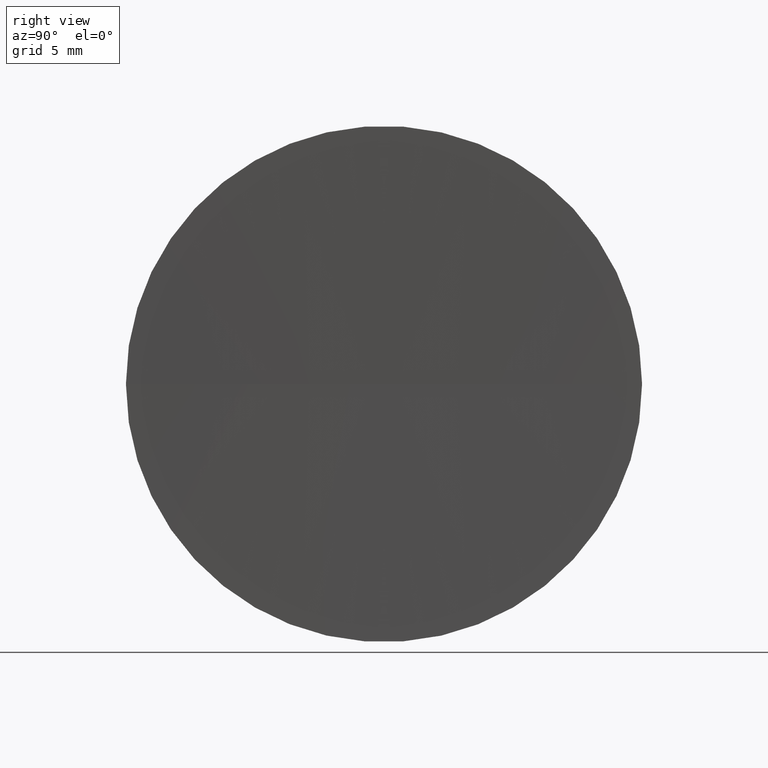
[diagram: clean part render]
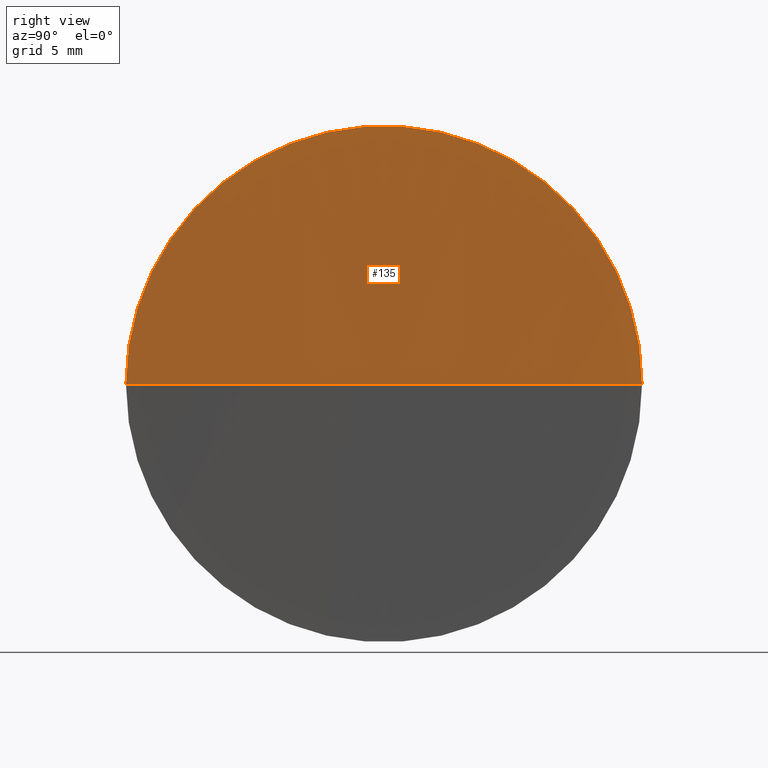
[diagram: same view with one face highlighted and labeled with its STEP entity id]
A machine part, right view. The second image highlights one B-rep face of the part: STEP entity #135.
In plain terms, the highlighted spherical surface has radius 621 mm.
Its self-contained STEP definition (entity closure, byte-faithful):
#9 = CARTESIAN_POINT ( 'NONE',  ( 125.4121936935220800, 65.21684047094004200, 0.0000000000000000000 ) ) ;
#21 = AXIS2_PLACEMENT_3D ( 'NONE', #60, #156, #78 ) ;
#31 = SPHERICAL_SURFACE ( 'NONE', #21, 621.0000000000000000 ) ;
#33 = EDGE_CURVE ( 'NONE', #90, #42, #86, .T. ) ;
#37 = CIRCLE ( 'NONE', #59, 621.0000000000000000 ) ;
#42 = VERTEX_POINT ( 'NONE', #9 ) ;
#47 = CARTESIAN_POINT ( 'NONE',  ( 125.5380115921884700, 65.21684047094032600, 0.0000000000000000000 ) ) ;
#49 = DIRECTION ( 'NONE',  ( 1.000000000000000000, 0.0000000000000000000, 0.0000000000000000000 ) ) ;
#54 = DIRECTION ( 'NONE',  ( -8.496118506040342700E-032, 1.224646799147353200E-016, -1.000000000000000000 ) ) ;
#59 = AXIS2_PLACEMENT_3D ( 'NONE', #164, #54, #163 ) ;
#60 = CARTESIAN_POINT ( 'NONE',  ( 746.4121936935221100, 65.21684047094044000, 0.0000000000000000000 ) ) ;
#73 = ORIENTED_EDGE ( 'NONE', *, *, #33, .F. ) ;
#74 = AXIS2_PLACEMENT_3D ( 'NONE', #47, #155, #107 ) ;
#75 = CARTESIAN_POINT ( 'NONE',  ( 746.4121936935221100, 65.21684047094044000, 0.0000000000000000000 ) ) ;
#78 = DIRECTION ( 'NONE',  ( -7.151195005637079400E-016, 1.000000000000000000, 0.0000000000000000000 ) ) ;
#86 = CIRCLE ( 'NONE', #89, 620.9999999999998900 ) ;
#88 = ORIENTED_EDGE ( 'NONE', *, *, #93, .F. ) ;
#89 = AXIS2_PLACEMENT_3D ( 'NONE', #75, #188, #49 ) ;
#90 = VERTEX_POINT ( 'NONE', #96 ) ;
#93 = EDGE_CURVE ( 'NONE', #131, #90, #139, .T. ) ;
#96 = CARTESIAN_POINT ( 'NONE',  ( 125.5380115921885200, 77.71684047094399300, 0.0000000000000000000 ) ) ;
#107 = DIRECTION ( 'NONE',  ( 0.0000000000000000000, -1.000000000000000000, 0.0000000000000000000 ) ) ;
#116 = ORIENTED_EDGE ( 'NONE', *, *, #179, .T. ) ;
#125 = CARTESIAN_POINT ( 'NONE',  ( 125.5380115921885200, 52.71684047093635400, -1.530808498934639200E-015 ) ) ;
#131 = VERTEX_POINT ( 'NONE', #125 ) ;
#135 = ADVANCED_FACE ( 'NONE', ( #192 ), #31, .F. ) ;
#136 = EDGE_LOOP ( 'NONE', ( #88, #116, #73 ) ) ;
#139 = CIRCLE ( 'NONE', #74, 12.49999999999999100 ) ;
#155 = DIRECTION ( 'NONE',  ( -1.000000000000000000, -6.937607244762875000E-016, -0.0000000000000000000 ) ) ;
#156 = DIRECTION ( 'NONE',  ( 0.0000000000000000000, 0.0000000000000000000, -1.000000000000000000 ) ) ;
#163 = DIRECTION ( 'NONE',  ( 0.0000000000000000000, 1.000000000000000000, 1.224646799147353200E-016 ) ) ;
#164 = CARTESIAN_POINT ( 'NONE',  ( 746.4121936935221100, 65.21684047094044000, 0.0000000000000000000 ) ) ;
#179 = EDGE_CURVE ( 'NONE', #131, #42, #37, .T. ) ;
#188 = DIRECTION ( 'NONE',  ( 0.0000000000000000000, -0.0000000000000000000, 1.000000000000000000 ) ) ;
#192 = FACE_OUTER_BOUND ( 'NONE', #136, .T. ) ;